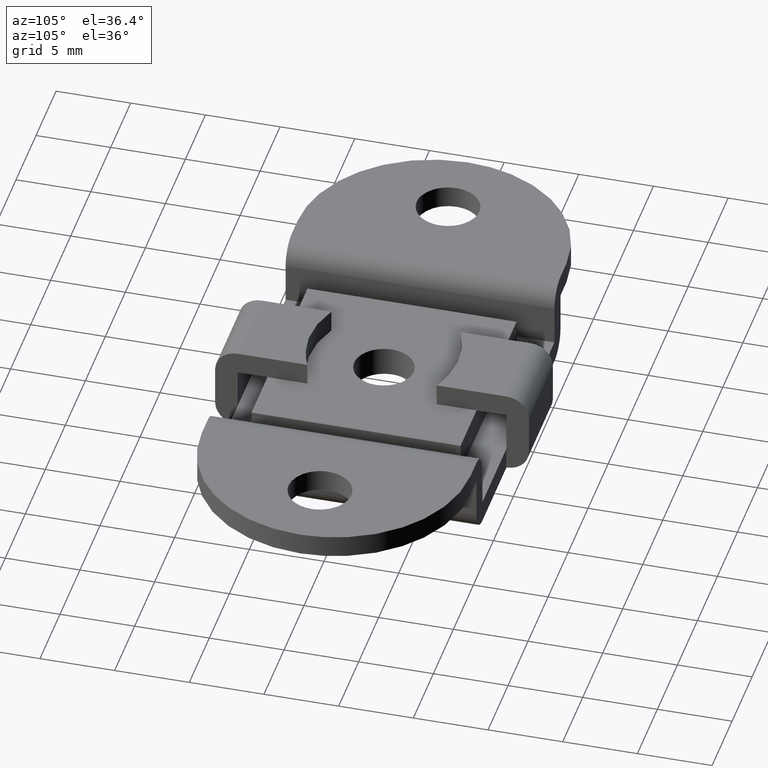
[diagram: clean part render]
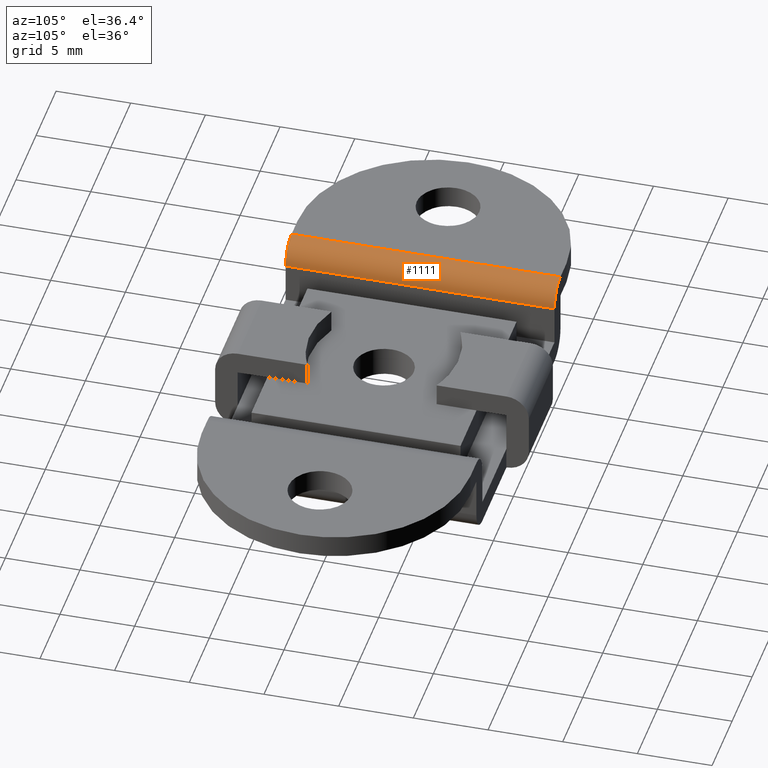
[diagram: same view with one face highlighted and labeled with its STEP entity id]
A machine part, auxiliary view. The second image highlights one B-rep face of the part: STEP entity #1111.
In plain terms, the highlighted face is a freeform B-spline surface patch.
Its self-contained STEP definition (entity closure, byte-faithful):
#1051=CARTESIAN_POINT('',(-10.539265422461810,9.450000000000001,5.699485987463335));
#1052=CARTESIAN_POINT('',(-10.539265422461810,-9.461250000000000,5.699485987463335));
#1053=CARTESIAN_POINT('',(-8.902863617108825,9.450000000000001,5.742336676793983));
#1054=CARTESIAN_POINT('',(-8.902863617108825,-9.461250000000000,5.742336676793983));
#1055=CARTESIAN_POINT('',(-9.002797802367201,9.450000000000001,4.108427190697715));
#1056=CARTESIAN_POINT('',(-9.002797802367201,-9.461250000000000,4.108427190697715));
#1064=(BOUNDED_SURFACE()B_SPLINE_SURFACE(1,2,((#1051,#1053,#1055),(#1052,#1054,#1056)),.UNSPECIFIED.,.F.,.F.,.U.)B_SPLINE_SURFACE_WITH_KNOTS((2,2),(3,3),(0.0,18.911249999999999),(0.0,2.640063185351001),.UNSPECIFIED.)GEOMETRIC_REPRESENTATION_ITEM()RATIONAL_B_SPLINE_SURFACE(((1.0,0.675590207615660,1.0),(1.0,0.675590207615660,1.0)))REPRESENTATION_ITEM('')SURFACE());
#1065=CARTESIAN_POINT('',(-10.500000000000000,9.0,5.700000000000000));
#1066=VERTEX_POINT('',#1065);
#1067=CARTESIAN_POINT('',(-9.0,9.0,4.200000000000000));
#1068=VERTEX_POINT('',#1067);
#1069=CARTESIAN_POINT('',(-10.500000000000000,9.0,5.700000000000000));
#1070=CARTESIAN_POINT('',(-10.389552792277780,9.000000000000002,5.700020192251236));
#1071=CARTESIAN_POINT('',(-10.180940462025770,8.999999999999988,5.676853394539768));
#1072=CARTESIAN_POINT('',(-9.899927707414610,9.000000000000030,5.584024062447181));
#1073=CARTESIAN_POINT('',(-9.673322516359113,8.999999999999957,5.459289235149973));
#1074=CARTESIAN_POINT('',(-9.464755083876703,9.000000000000053,5.296529643681336));
#1075=CARTESIAN_POINT('',(-9.279576353710979,8.999999999999991,5.089692356114492));
#1076=CARTESIAN_POINT('',(-9.118132099505454,9.000000000000009,4.812696311184907));
#1077=CARTESIAN_POINT('',(-9.021142245683929,9.0,4.512933081598130));
#1078=CARTESIAN_POINT('',(-8.999991551064070,8.999999999999996,4.298173476129058));
#1079=CARTESIAN_POINT('',(-9.0,9.0,4.200000000000000));
#1080=B_SPLINE_CURVE_WITH_KNOTS('',3,(#1069,#1070,#1071,#1072,#1073,#1074,#1075,#1076,#1077,#1078,#1079),.UNSPECIFIED.,.F.,.U.,(4,1,1,1,1,1,1,1,4),(0.000000052719273,0.331338341886281,0.625868551229856,0.883582025426378,1.104485702340122,1.417397069881645,1.711931886898822,2.061685967823337,2.356209274317297),.UNSPECIFIED.);
#1081=EDGE_CURVE('',#1066,#1068,#1080,.T.);
#1082=ORIENTED_EDGE('',*,*,#1081,.F.);
#1083=CARTESIAN_POINT('',(-10.500000000000000,-9.0,5.700000000000000));
#1084=VERTEX_POINT('',#1083);
#1085=CARTESIAN_POINT('',(-10.500000000000000,-9.0,5.700000000000000));
#1086=CARTESIAN_POINT('',(-10.500000000000000,9.0,5.700000000000000));
#1087=QUASI_UNIFORM_CURVE('',1,(#1085,#1086),.UNSPECIFIED.,.F.,.U.);
#1088=EDGE_CURVE('',#1084,#1066,#1087,.T.);
#1089=ORIENTED_EDGE('',*,*,#1088,.F.);
#1090=CARTESIAN_POINT('',(-9.0,-9.0,4.200000000000000));
#1091=VERTEX_POINT('',#1090);
#1092=CARTESIAN_POINT('',(-9.0,-9.0,4.200000000000000));
#1093=CARTESIAN_POINT('',(-8.999928058886743,-8.999999999999998,4.353404095843294));
#1094=CARTESIAN_POINT('',(-9.041780730467531,-9.000000000000023,4.623347350537309));
#1095=CARTESIAN_POINT('',(-9.194092587132648,-8.999999999999984,4.961276353387037));
#1096=CARTESIAN_POINT('',(-9.385080949093156,-9.000000000000014,5.218786905627789));
#1097=CARTESIAN_POINT('',(-9.637877401016819,-9.000000000000057,5.445133894437854));
#1098=CARTESIAN_POINT('',(-10.009199310242270,-8.999999999999844,5.643637845084115));
#1099=CARTESIAN_POINT('',(-10.322041653935941,-9.000000000000174,5.700143104309575));
#1100=CARTESIAN_POINT('',(-10.500000000000000,-9.0,5.700000000000000));
#1101=B_SPLINE_CURVE_WITH_KNOTS('',3,(#1092,#1093,#1094,#1095,#1096,#1097,#1098,#1099,#1100),.UNSPECIFIED.,.F.,.U.,(4,1,1,1,1,1,4),(0.000000052719707,0.460196441646502,0.809953102174631,1.104485702340512,1.417397069882107,1.822382049918193,2.356209274317278),.UNSPECIFIED.);
#1102=EDGE_CURVE('',#1091,#1084,#1101,.T.);
#1103=ORIENTED_EDGE('',*,*,#1102,.F.);
#1104=CARTESIAN_POINT('',(-9.0,9.0,4.200000000000000));
#1105=CARTESIAN_POINT('',(-9.0,-9.0,4.200000000000000));
#1106=QUASI_UNIFORM_CURVE('',1,(#1104,#1105),.UNSPECIFIED.,.F.,.U.);
#1107=EDGE_CURVE('',#1068,#1091,#1106,.T.);
#1108=ORIENTED_EDGE('',*,*,#1107,.F.);
#1109=EDGE_LOOP('',(#1082,#1089,#1103,#1108));
#1110=FACE_OUTER_BOUND('',#1109,.T.);
#1111=ADVANCED_FACE('',(#1110),#1064,.T.);